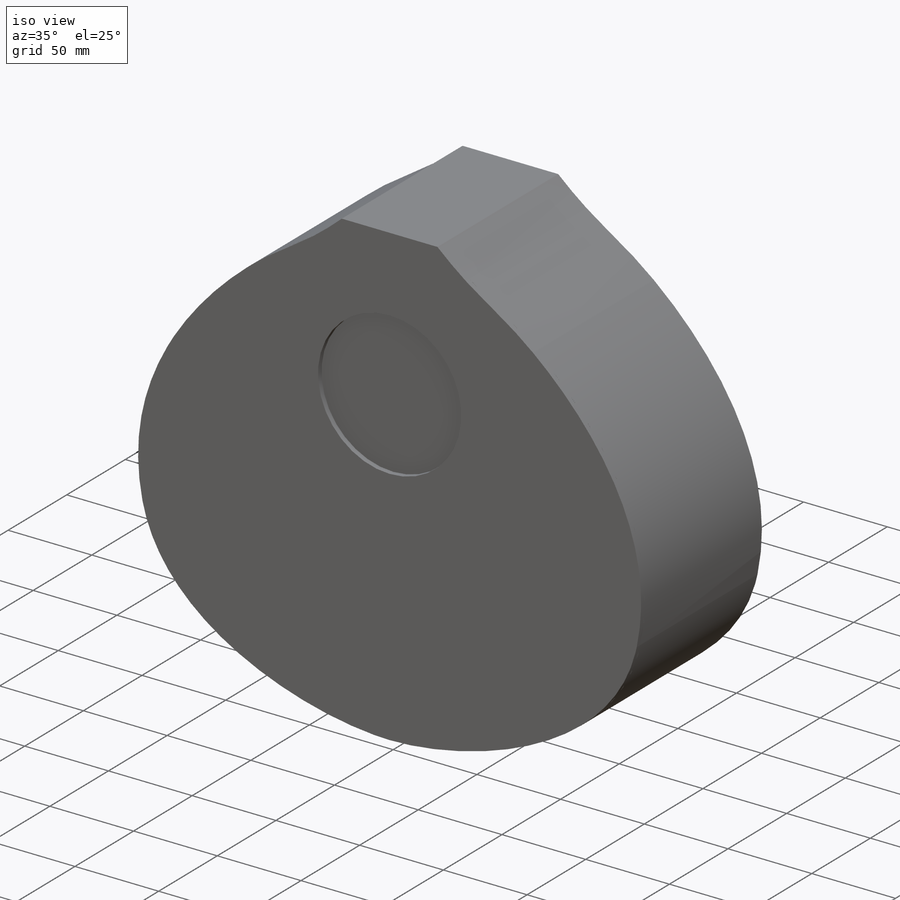
[diagram: iso view]
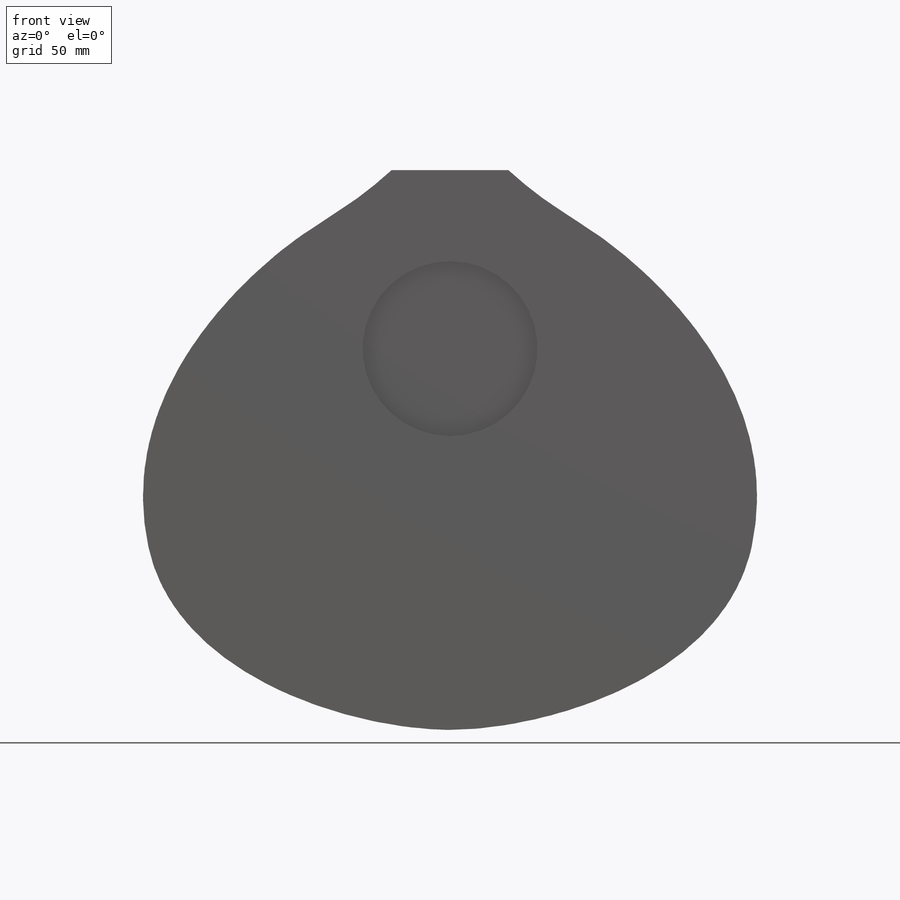
[diagram: front view]
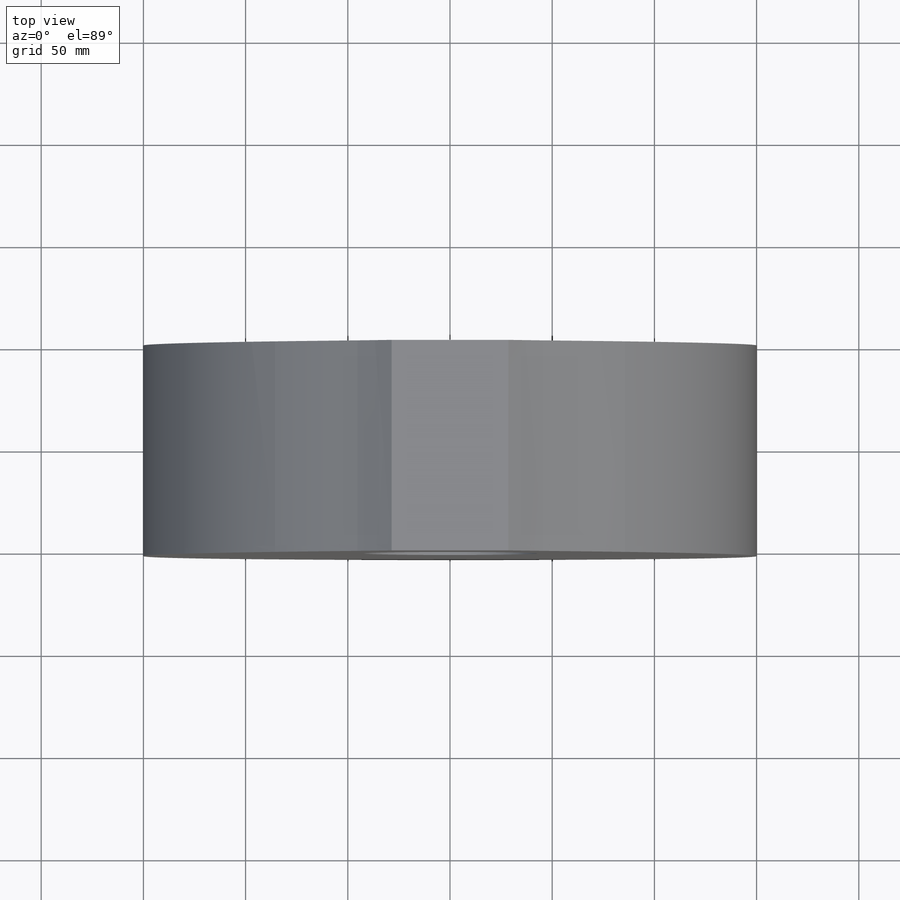
[diagram: top view]
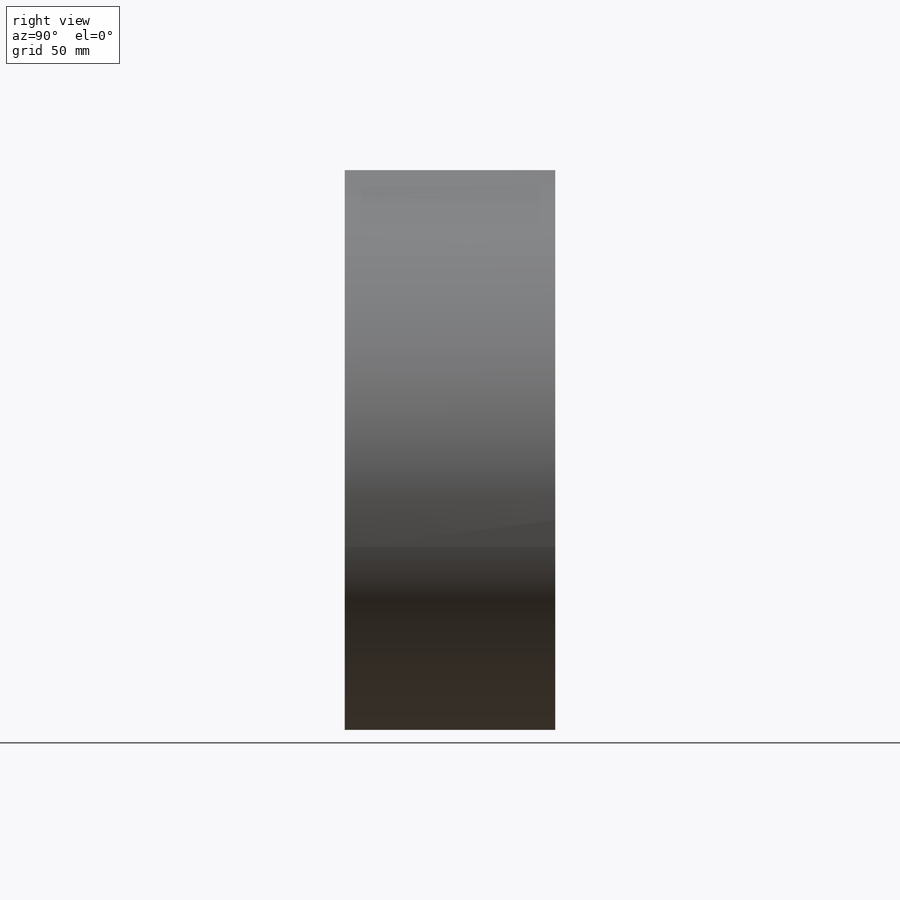
[diagram: right view]
SOLIDWORKS PART (.sldprt)
format: sldprt  version: not decoded by parser v0  size: 207,360 bytes
history: native  units: mm
features: extrude x5, sketch x4, plane x3, material x1 (+12 scaffold rows collapsed)
feature tree (25):
  scaffold x12  (default folders/planes/origin — collapsed)
  material  "Material <sin especificar>"
  plane  "Alzado"
  plane  "Planta"
  plane  "Vista lateral"
  sketch  "Croquis1"  dims[D1=~273.832791mm]
  sketch  "Croquis3"
  extrude  "Saliente-Extruir1"  Depth=100mm
  extrude  "Saliente-Extruir2"  Depth=100mm
  sketch  "Croquis8"
  sketch  "Croquis10"
  extrude  "Bloque5"  [1 undecoded]
  extrude  "Saliente-Extruir6"  Depth=3mm
  extrude  "Saliente-Extruir7"  Depth=3mm
decode coverage: 5 of 9 modeling features carry decoded parameters
note: ~ marks probable driven/reference dimensions
note: 1 parameter value undecoded
note: suppression state not decoded; provenance and decode notes live in map.json
